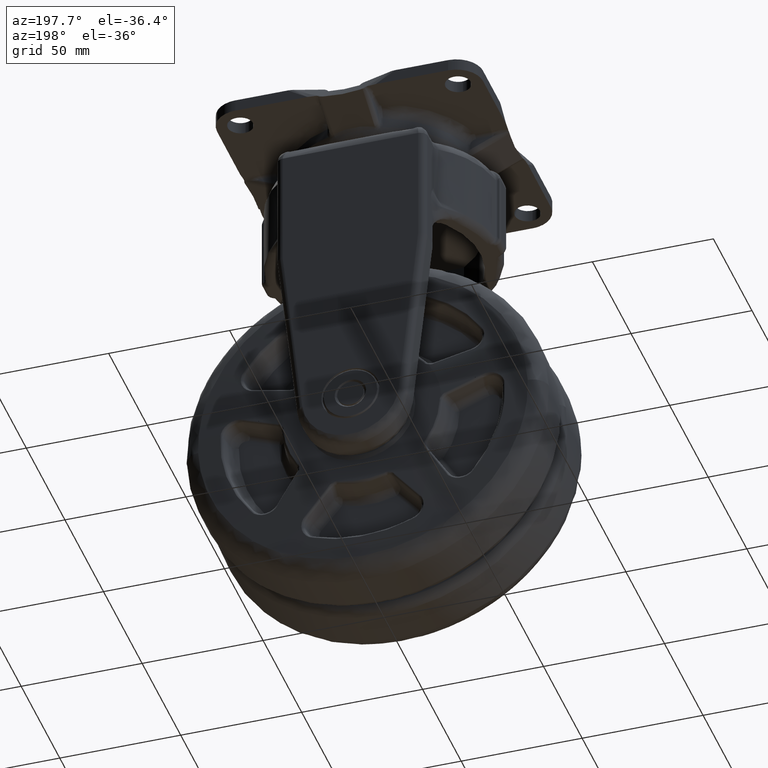
[diagram: clean part render]
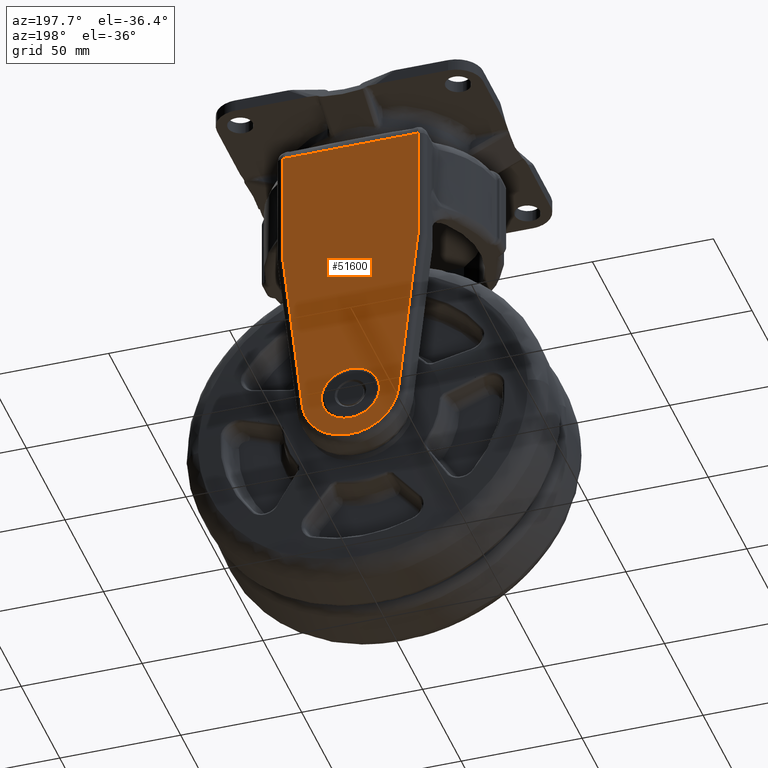
[diagram: same view with one face highlighted and labeled with its STEP entity id]
A machine part, auxiliary view. The second image highlights one B-rep face of the part: STEP entity #51600.
In plain terms, the highlighted face is a freeform B-spline surface patch.
Its self-contained STEP definition (entity closure, byte-faithful):
#50951=CARTESIAN_POINT('',(-11.963008132735670,43.500000000000000,-126.058492476876790));
#50952=VERTEX_POINT('',#50951);
#50958=CARTESIAN_POINT('',(0.0,43.500000000000000,-115.0));
#50959=VERTEX_POINT('',#50958);
#50960=CARTESIAN_POINT('',(0.0,43.500000000000000,-115.0));
#50961=CARTESIAN_POINT('',(-11.092687411905544,43.499999999999993,-115.0));
#50962=CARTESIAN_POINT('',(-11.963008132735787,43.500000000000000,-126.058492476876760));
#50970=(BOUNDED_CURVE()B_SPLINE_CURVE(2,(#50960,#50961,#50962),.UNSPECIFIED.,.F.,.U.)B_SPLINE_CURVE_WITH_KNOTS((3,3),(0.0,0.236331323927037),.UNSPECIFIED.)CURVE()GEOMETRIC_REPRESENTATION_ITEM()RATIONAL_B_SPLINE_CURVE((1.0,0.723120631314262,0.969723404785184))REPRESENTATION_ITEM(''));
#50971=EDGE_CURVE('',#50959,#50952,#50970,.T.);
#50973=CARTESIAN_POINT('',(11.963008132735659,43.500000000000000,-127.941507523123410));
#50974=VERTEX_POINT('',#50973);
#50975=CARTESIAN_POINT('',(11.963008132735764,43.499999999999986,-127.941507523123390));
#50976=CARTESIAN_POINT('',(11.999999999999998,43.499999999999993,-127.471480467514740));
#50977=CARTESIAN_POINT('',(12.0,43.500000000000000,-127.0));
#50978=CARTESIAN_POINT('',(12.0,43.500000000000000,-114.999999999999970));
#50979=CARTESIAN_POINT('',(0.0,43.500000000000000,-115.0));
#50987=(BOUNDED_CURVE()B_SPLINE_CURVE(2,(#50975,#50976,#50977,#50978,#50979),.UNSPECIFIED.,.F.,.U.)B_SPLINE_CURVE_WITH_KNOTS((3,2,3),(0.736331323927034,0.750000000000000,1.0),.UNSPECIFIED.)CURVE()GEOMETRIC_REPRESENTATION_ITEM()RATIONAL_B_SPLINE_CURVE((0.969723404785178,0.983986149872282,1.0,0.707106781186548,1.0))REPRESENTATION_ITEM(''));
#50988=EDGE_CURVE('',#50974,#50959,#50987,.T.);
#51020=CARTESIAN_POINT('',(0.0,43.500000000000000,-139.0));
#51021=VERTEX_POINT('',#51020);
#51022=CARTESIAN_POINT('',(0.0,43.500000000000000,-139.0));
#51023=CARTESIAN_POINT('',(11.092687411905347,43.500000000000000,-139.000000000000090));
#51024=CARTESIAN_POINT('',(11.963008132735764,43.499999999999986,-127.941507523123390));
#51032=(BOUNDED_CURVE()B_SPLINE_CURVE(2,(#51022,#51023,#51024),.UNSPECIFIED.,.F.,.U.)B_SPLINE_CURVE_WITH_KNOTS((3,3),(0.500000000000000,0.736331323927034),.UNSPECIFIED.)CURVE()GEOMETRIC_REPRESENTATION_ITEM()RATIONAL_B_SPLINE_CURVE((1.0,0.723120631314266,0.969723404785178))REPRESENTATION_ITEM(''));
#51033=EDGE_CURVE('',#51021,#50974,#51032,.T.);
#51035=CARTESIAN_POINT('',(-11.963008132735782,43.500000000000000,-126.058492476876790));
#51036=CARTESIAN_POINT('',(-12.000000000000002,43.500000000000000,-126.528519532485390));
#51037=CARTESIAN_POINT('',(-12.0,43.500000000000000,-127.0));
#51038=CARTESIAN_POINT('',(-12.0,43.500000000000000,-139.0));
#51039=CARTESIAN_POINT('',(0.0,43.500000000000000,-139.0));
#51047=(BOUNDED_CURVE()B_SPLINE_CURVE(2,(#51035,#51036,#51037,#51038,#51039),.UNSPECIFIED.,.F.,.U.)B_SPLINE_CURVE_WITH_KNOTS((3,2,3),(0.236331323927037,0.250000000000000,0.500000000000000),.UNSPECIFIED.)CURVE()GEOMETRIC_REPRESENTATION_ITEM()RATIONAL_B_SPLINE_CURVE((0.969723404785185,0.983986149872286,1.0,0.707106781186548,1.0))REPRESENTATION_ITEM(''));
#51048=EDGE_CURVE('',#50952,#51021,#51047,.T.);
#51528=CARTESIAN_POINT('',(-30.797199891461140,43.500000000000000,1.042949726121149));
#51529=CARTESIAN_POINT('',(30.797201393498181,43.500000000000000,1.042949726121149));
#51530=CARTESIAN_POINT('',(-30.797199891461140,43.500000000000000,-154.042953496154100));
#51531=CARTESIAN_POINT('',(30.797201393498181,43.500000000000000,-154.042953496154100));
#51532=B_SPLINE_SURFACE_WITH_KNOTS('',1,1,((#51528,#51530),(#51529,#51531)),.UNSPECIFIED.,.F.,.F.,.U.,(2,2),(2,2),(0.0,61.594401284959318),(0.0,155.085903222275310),.UNSPECIFIED.);
#51533=CARTESIAN_POINT('',(-28.0,43.500000000000000,-6.0));
#51534=VERTEX_POINT('',#51533);
#51535=CARTESIAN_POINT('',(28.0,43.500000000000000,-6.0));
#51536=VERTEX_POINT('',#51535);
#51537=CARTESIAN_POINT('',(-28.0,43.500000000000000,-6.0));
#51538=CARTESIAN_POINT('',(28.0,43.500000000000000,-6.0));
#51539=QUASI_UNIFORM_CURVE('',1,(#51537,#51538),.UNSPECIFIED.,.F.,.U.);
#51540=EDGE_CURVE('',#51534,#51536,#51539,.T.);
#51541=ORIENTED_EDGE('',*,*,#51540,.T.);
#51542=CARTESIAN_POINT('',(28.0,43.500000000000000,-54.667041837728512));
#51543=VERTEX_POINT('',#51542);
#51544=CARTESIAN_POINT('',(28.0,43.500000000000000,-6.0));
#51545=CARTESIAN_POINT('',(28.0,43.500000000000000,-54.667041837728512));
#51546=QUASI_UNIFORM_CURVE('',1,(#51544,#51545),.UNSPECIFIED.,.F.,.U.);
#51547=EDGE_CURVE('',#51536,#51543,#51546,.T.);
#51548=ORIENTED_EDGE('',*,*,#51547,.T.);
#51549=CARTESIAN_POINT('',(19.882317390752149,43.500000000000000,-129.166438251630410));
#51550=VERTEX_POINT('',#51549);
#51551=CARTESIAN_POINT('',(28.0,43.500000000000000,-54.667041837728512));
#51552=CARTESIAN_POINT('',(19.882317390752149,43.500000000000000,-129.166438251630410));
#51553=QUASI_UNIFORM_CURVE('',1,(#51551,#51552),.UNSPECIFIED.,.F.,.U.);
#51554=EDGE_CURVE('',#51543,#51550,#51553,.T.);
#51555=ORIENTED_EDGE('',*,*,#51554,.T.);
#51556=CARTESIAN_POINT('',(-19.882317419490850,43.500000000000000,-129.166437987883000));
#51557=VERTEX_POINT('',#51556);
#51558=CARTESIAN_POINT('',(19.882317390752149,43.500000000000000,-129.166438251630410));
#51559=CARTESIAN_POINT('',(19.742247515608572,43.499999999999979,-130.453528341888700));
#51560=CARTESIAN_POINT('',(19.288846855797111,43.500000000000000,-132.625722624205790));
#51561=CARTESIAN_POINT('',(18.014902698765439,43.500000000000000,-135.898082291027010));
#51562=CARTESIAN_POINT('',(16.527606716249061,43.500000000000007,-138.396630759493800));
#51563=CARTESIAN_POINT('',(14.500037046834020,43.500000000000043,-140.876179297467590));
#51564=CARTESIAN_POINT('',(12.189945230749730,43.499999999999879,-142.996416897427790));
#51565=CARTESIAN_POINT('',(8.820076373862737,43.500000000000441,-145.108238203920000));
#51566=CARTESIAN_POINT('',(4.865564860880597,43.499999999999972,-146.570520615074090));
#51567=CARTESIAN_POINT('',(1.068122408970289,43.500000000000007,-147.072051625952010));
#51568=CARTESIAN_POINT('',(-2.286811425294905,43.499999999999922,-146.937652338818400));
#51569=CARTESIAN_POINT('',(-5.442272567633538,43.500000000000369,-146.354534709188500));
#51570=CARTESIAN_POINT('',(-9.094915131288047,43.499999999999687,-144.980502161266400));
#51571=CARTESIAN_POINT('',(-12.383835820559440,43.499999999999929,-142.866825052830710));
#51572=CARTESIAN_POINT('',(-15.358959233015179,43.500000000000092,-140.008234088907100));
#51573=CARTESIAN_POINT('',(-17.646561121346679,43.499999999999822,-136.743773290446310));
#51574=CARTESIAN_POINT('',(-19.233930736163849,43.500000000000441,-132.926240855386110));
#51575=CARTESIAN_POINT('',(-19.750434571780119,43.499999999999417,-130.377792026400410));
#51576=CARTESIAN_POINT('',(-19.882317419490850,43.500000000000000,-129.166437987883000));
#51577=B_SPLINE_CURVE_WITH_KNOTS('',3,(#51558,#51559,#51560,#51561,#51562,#51563,#51564,#51565,#51566,#51567,#51568,#51569,#51570,#51571,#51572,#51573,#51574,#51575,#51576),.UNSPECIFIED.,.F.,.U.,(4,1,1,1,1,1,1,1,1,1,1,1,1,1,1,1,4),(0.000000214590692,3.884049762832419,6.625836923766158,10.510026466135640,12.566359779388289,16.222068124100819,19.877739767941708,24.447341474607139,28.788494200587660,31.301632496788649,34.500321034323832,38.384505008057587,42.954164016302492,46.152908674388669,50.722475577001987,54.835224299606352,58.490776382008612),.UNSPECIFIED.);
#51578=EDGE_CURVE('',#51550,#51557,#51577,.T.);
#51579=ORIENTED_EDGE('',*,*,#51578,.T.);
#51580=CARTESIAN_POINT('',(-28.0,43.500000000000000,-54.667032660304002));
#51581=VERTEX_POINT('',#51580);
#51582=CARTESIAN_POINT('',(-19.882317419490850,43.500000000000000,-129.166437987883000));
#51583=CARTESIAN_POINT('',(-28.0,43.500000000000000,-54.667032660304002));
#51584=QUASI_UNIFORM_CURVE('',1,(#51582,#51583),.UNSPECIFIED.,.F.,.U.);
#51585=EDGE_CURVE('',#51557,#51581,#51584,.T.);
#51586=ORIENTED_EDGE('',*,*,#51585,.T.);
#51587=CARTESIAN_POINT('',(-28.0,43.500000000000000,-54.667032660304002));
#51588=CARTESIAN_POINT('',(-28.0,43.500000000000000,-6.0));
#51589=QUASI_UNIFORM_CURVE('',1,(#51587,#51588),.UNSPECIFIED.,.F.,.U.);
#51590=EDGE_CURVE('',#51581,#51534,#51589,.T.);
#51591=ORIENTED_EDGE('',*,*,#51590,.T.);
#51592=EDGE_LOOP('',(#51541,#51548,#51555,#51579,#51586,#51591));
#51593=FACE_OUTER_BOUND('',#51592,.T.);
#51594=ORIENTED_EDGE('',*,*,#51033,.T.);
#51595=ORIENTED_EDGE('',*,*,#50988,.T.);
#51596=ORIENTED_EDGE('',*,*,#50971,.T.);
#51597=ORIENTED_EDGE('',*,*,#51048,.T.);
#51598=EDGE_LOOP('',(#51594,#51595,#51596,#51597));
#51599=FACE_BOUND('',#51598,.T.);
#51600=ADVANCED_FACE('',(#51593,#51599),#51532,.T.);